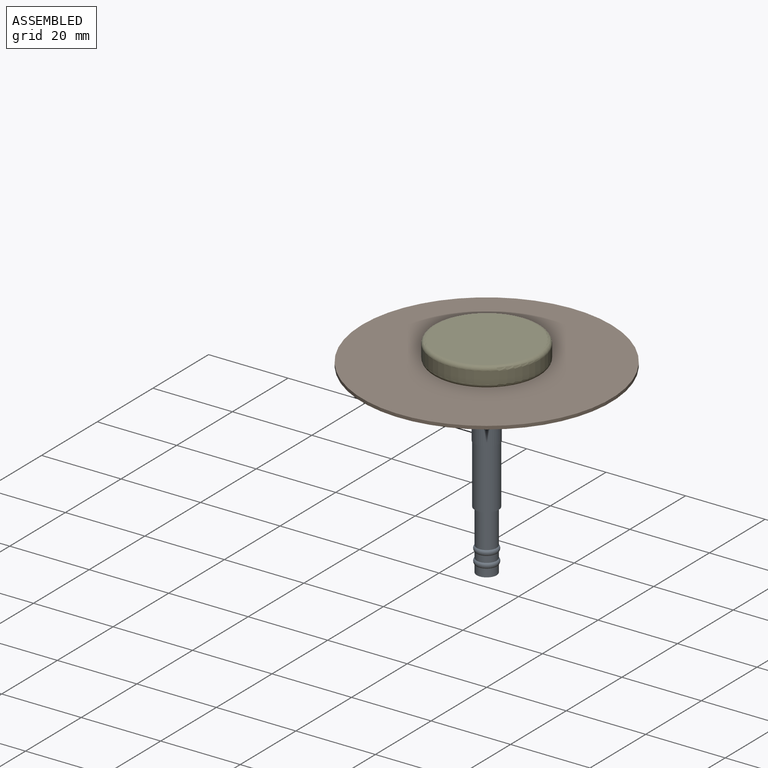
[diagram: assembled view]
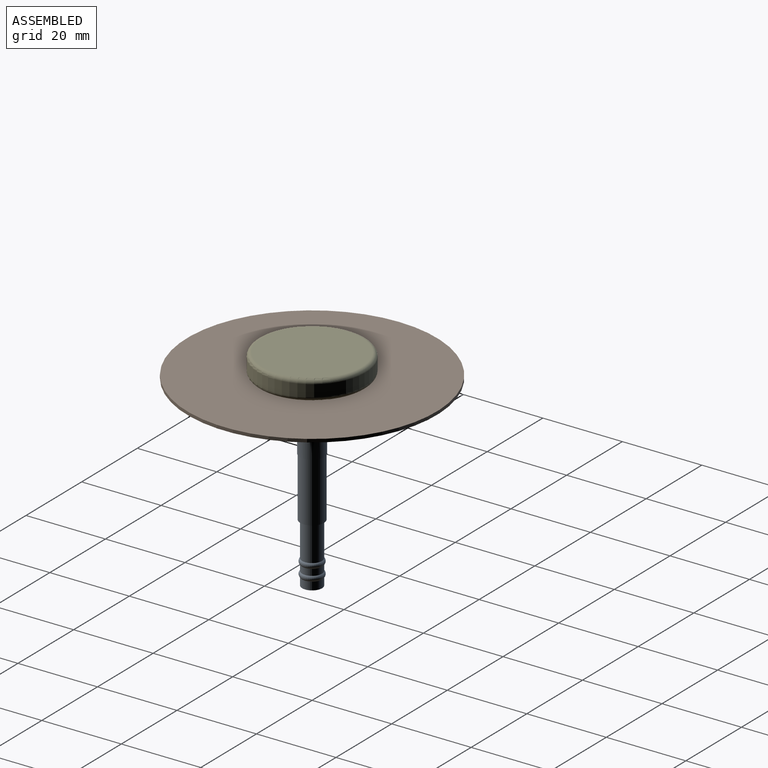
[diagram: assembled view, second angle]
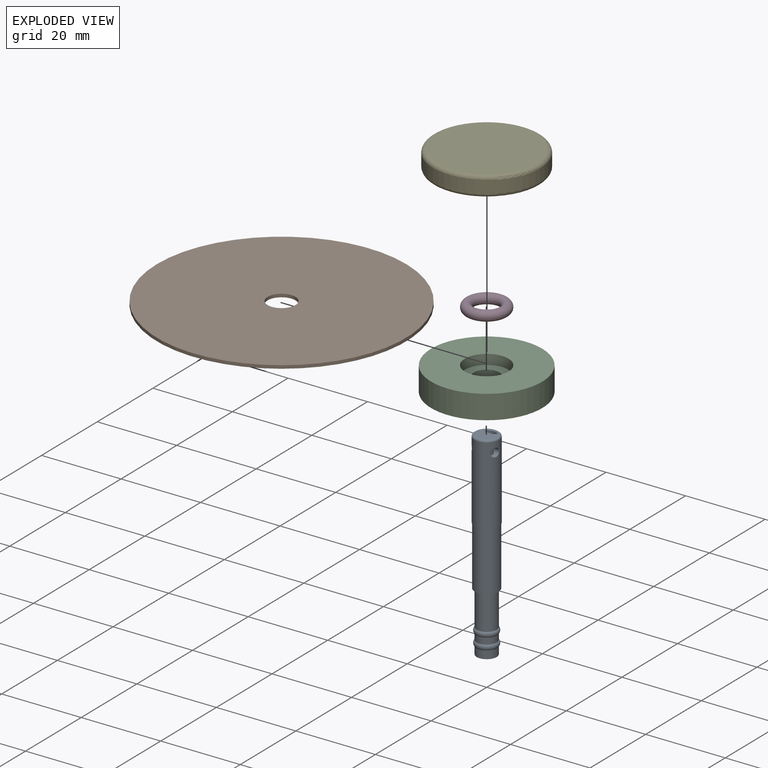
[diagram: exploded view]
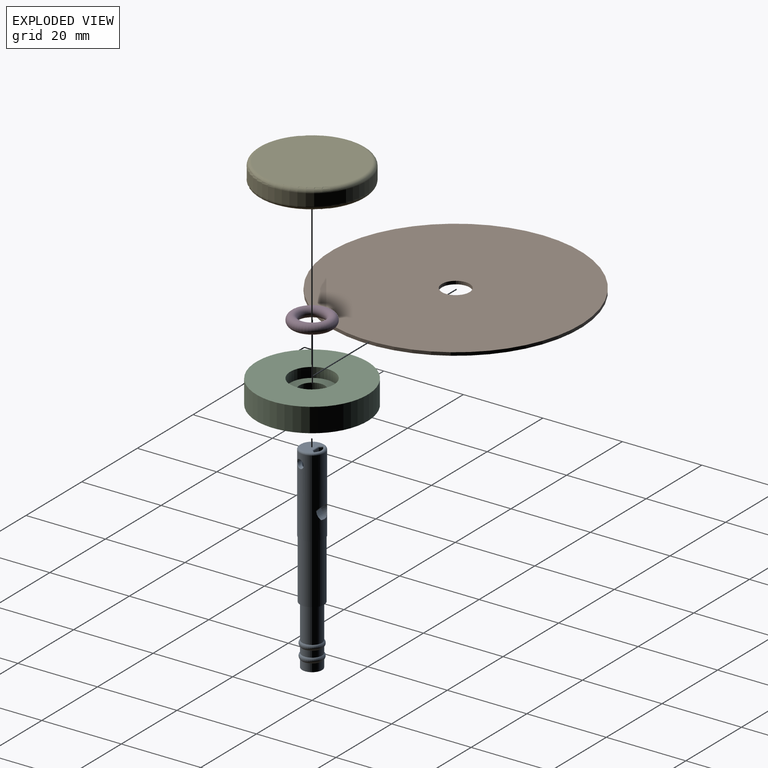
[diagram: exploded view, second angle]
ASSEMBLY  parts=5 mates=4
PART A: 44 faces, bbox 6.7x7x54 mm
  f0: cylinder r=3.1mm len=19.5mm, axis (0,0,1), area 360.5mm2, adj f1,f8,f9,f10,f11,f41,f42,f43
  f1: bspline ~15.61x2.41mm, area 31.6mm2, adj f0,f2,f8,f10
  f2: cylinder r=0.25mm len=2.21mm, axis (-1,0,0), area 0.8mm2, adj f1,f3,f6,f7
  f3: bspline ~1.59x1.59mm, area 0.4mm2, adj f2,f4,f6,f10
  f4: bspline ~4.12x1.22mm, area 1.6mm2, adj f3,f5,f6,f7
  f5: bspline ~14.33x3.3mm, area 46mm2, adj f4,f8,f9,f10
  f6: plane 5.2x5.2mm, normal (0,0,1), area 16mm2, adj f2,f3,f4,f7,f41
  f7: bspline ~1.59x1.59mm, area 0.4mm2, adj f2,f4,f6,f8
  f8: bspline ~15.19x2.31mm, area 13.9mm2, adj f0,f1,f5,f7,f9
  f9: bspline ~4.15x4.04mm, area 3.1mm2, adj f0,f5,f8,f10
  f10: bspline ~15.19x2.31mm, area 13.9mm2, adj f0,f1,f3,f5,f9
  f11: bspline ~2.28x2.2mm, area 1.2mm2, adj f0,f12
  f12: cylinder r=1mm len=2.49mm, axis (1,0,0), area 7.1mm2, adj f11,f13,f36,f37,f38,f39,f40
  f13: bspline ~0.6x0.32mm, area 0mm2, adj f12,f14
  f14: bspline ~50x4.2mm, area 175.6mm2, adj f13,f15,f16,f24,f34,f35,f36,f37
  f15: bspline ~54.04x0.91mm, area 14.3mm2, adj f14,f36,f40
  f16: plane 5x5mm, normal (0,0,-1), area 12.6mm2, adj f14,f17,f40
  f17: cylinder r=2.5mm len=5mm, axis (0,0,-1), area 31.4mm2, adj f16,f18
  f18: torus R=1.95mm, axis (0,0,-1), area 25mm2, adj f17,f19
  f19: cylinder r=2.5mm len=5mm, axis (0,0,-1), area 25.1mm2, adj f18,f20
  f20: torus R=1.95mm, axis (0,0,-1), area 25mm2, adj f19,f21
  f21: cylinder r=2.5mm len=8.8mm, axis (0,0,-1), area 138.2mm2, adj f20,f22
  f22: plane 6x6mm, normal (0,0,-1), area 8.6mm2, adj f21,f23
  f23: cylinder r=3mm len=15mm, axis (0,0,-1), area 282.7mm2, adj f22,f42
  f24: bspline ~49.83x0.84mm, area 21.7mm2, adj f14,f25,f32,f33,f40
  f25: cylinder r=1mm len=2.49mm, axis (1,0,0), area 7.5mm2, adj f24,f26,f32,f40,f43
  f26: bspline ~0.94x0.85mm, area 0.2mm2, adj f25,f27,f28,f31
  f27: torus R=1.58mm, axis (0,0,1), area 3mm2, adj f26,f28,f39,f40
  f28: plane 3.01x1.14mm, normal (0,0,-1), area 2.5mm2, adj f26,f27,f29,f31,f34,f39
  f29: torus R=1.58mm, axis (0,0,1), area 0.2mm2, adj f28,f30,f38,f39
  f30: sphere r=0.5mm, area 0.6mm2, adj f29,f34,f35
  f31: torus R=1.58mm, axis (0,0,1), area 0.2mm2, adj f26,f28,f32,f33
  f32: cone r=1.5mm half-angle=0.7deg, axis (0,0,1), area 0mm2, adj f24,f25,f31
  f33: sphere r=0.5mm, area 0.6mm2, adj f24,f31,f34
  f34: bspline ~4.28x0.57mm, area 2.3mm2, adj f14,f28,f30,f33
  f35: bspline ~4.16x0.71mm, area 0.1mm2, adj f14,f30,f37,f38
  f36: bspline ~0.89x0.68mm, area 0.2mm2, adj f12,f14,f15
  f37: bspline ~1.02x0.69mm, area 0.2mm2, adj f12,f14,f35
  f38: cone r=1.5mm half-angle=0.7deg, axis (0,0,1), area 0mm2, adj f12,f29,f35
  f39: bspline ~0.64x0.59mm, area 0.2mm2, adj f12,f27,f28,f29
  f40: cone r=1.5mm half-angle=0.7deg, axis (0,0,1), area 236mm2, adj f12,f15,f16,f24,f25,f27
  f41: torus R=2.6mm, axis (0,0,1), area 14.4mm2, adj f0,f6
  f42: plane 6.2x6.2mm, normal (0,0,-1), area 1.9mm2, adj f0,f23
  f43: bspline ~2.28x2.2mm, area 1.2mm2, adj f0,f25
PART B: 4 faces, bbox 62.7x62.7x0.8 mm
  f0: plane 62.72x62.72mm, normal (0,0,-1), area 3050.8mm2, adj f1,f3
  f1: cylinder r=31.36mm len=62.72mm, axis (0,0,-1), area 157.6mm2, adj f0,f2
  f2: plane 62.72x62.72mm, normal (0,0,1), area 3050.8mm2, adj f1,f3
  f3: cylinder r=3.5mm len=7mm, axis (0,0,-1), area 17.6mm2, adj f0,f2
PART C: 18 faces, bbox 28x28x6 mm
  f0: cylinder r=3.2mm len=6.4mm, axis (0,0,-1), area 70.4mm2, adj f1,f5
  f1: plane 28x28mm, normal (0,0,-1), area 496.5mm2, adj f0,f2,f6,f8,f10,f12,f14,f16
  f2: cylinder r=14mm len=28mm, axis (0,0,-1), area 527.8mm2, adj f1,f3
  f3: plane 28x28mm, normal (0,0,1), area 520.7mm2, adj f2,f4
  f4: cylinder r=5.5mm len=11mm, axis (0,0,-1), area 86.4mm2, adj f3,f5
  f5: plane 11x11mm, normal (0,0,1), area 62.9mm2, adj f0,f4
  f6: cylinder r=2.15mm len=5mm, axis (0,0,-1), area 67.5mm2, adj f1,f7
  f7: plane 4.3x4.3mm, normal (0,0,-1), area 14.5mm2, adj f6
  f8: cylinder r=2.15mm len=5mm, axis (0,0,-1), area 67.5mm2, adj f1,f9
  f9: plane 4.3x4.3mm, normal (0,0,-1), area 14.5mm2, adj f8
  f10: cylinder r=2.15mm len=5mm, axis (0,0,-1), area 67.5mm2, adj f1,f11
  f11: plane 4.3x4.3mm, normal (0,0,-1), area 14.5mm2, adj f10
  f12: cylinder r=2.15mm len=5mm, axis (0,0,-1), area 67.5mm2, adj f1,f13
  f13: plane 4.3x4.3mm, normal (0,0,-1), area 14.5mm2, adj f12
  f14: cylinder r=2.15mm len=5mm, axis (0,0,-1), area 67.5mm2, adj f1,f15
  f15: plane 4.3x4.3mm, normal (0,0,-1), area 14.5mm2, adj f14
  f16: cylinder r=2.15mm len=5mm, axis (0,0,-1), area 67.5mm2, adj f1,f17
  f17: plane 4.3x4.3mm, normal (0,0,-1), area 14.5mm2, adj f16
PART D: 1 faces, bbox 11.9x11.9x2.5 mm
  f0: torus R=4.25mm, axis (0,0,-1), area 209.7mm2
PART E: 8 faces, bbox 29.2x29.2x5 mm
  f0: plane 25x25mm, normal (0,0,1), area 490.9mm2, adj f6
  f1: plane 5x5mm, normal (0,0,-1), area 19.6mm2, adj f7
  f2: cylinder r=3.5mm len=7mm, axis (0,0,-1), area 22mm2, adj f3,f7
  f3: plane 25x25mm, normal (0,0,-1), area 452.4mm2, adj f2,f5
  f4: cylinder r=13.5mm len=27mm, axis (0,0,-1), area 254.5mm2, adj f5,f6
  f5: torus R=12.5mm, axis (0,0,1), area 129.7mm2, adj f3,f4
  f6: torus R=12.5mm, axis (0,0,1), area 129.7mm2, adj f0,f4
  f7: torus R=2.5mm, axis (0,0,-1), area 31mm2, adj f1,f2
PLACE A t=(0,0,8.9)mm
PLACE B t=(0,0,4.75)mm
PLACE C t=(0,0,4.75)mm
PLACE D t=(0,0,4.75)mm
PLACE E t=(0,0,8.9)mm
MATE fastened B.f1 <-> C.f0  axis (0,0,-1) through (0,0,6)mm
MATE fastened D.f0 <-> C.f0  axis (0,0,-1) through (0,0,4.75)mm
MATE slider A.f0 <-> E.f2  axis (0,0,1) through (0,0,8.9)mm
MATE slider E.f2 <-> B.f1  axis (0,0,-1) through (0,0,6.9)mm
